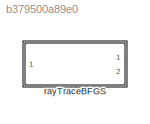
MODEL slx_b379500a89e0
KIND library
CONFIG AbsTol = auto
CONFIG EnableMultiTasking = off
CONFIG FixedStep = auto
CONFIG MaxStep = auto
CONFIG MinStep = auto
CONFIG RelTol = 1e-3
CONFIG SampleTimeConstraint = Unconstrained
CONFIG Solver = VariableStepAuto
CONFIG SolverName = VariableStepAuto
CONFIG StartTime = 0.0
CONFIG StopTime = 10.0
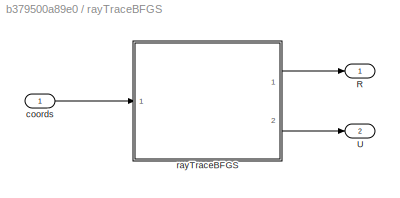
BLOCK [SubSystem] rayTraceBFGS
  Ports = [1, 2]
  RequestExecContextInheritance = off
  TreatAsAtomicUnit = on
BLOCK [Outport] rayTraceBFGS/R
  IconDisplay = Port number
BLOCK [Outport] rayTraceBFGS/U
  IconDisplay = Port number
  Port = 2
BLOCK [Inport] rayTraceBFGS/coords
  IconDisplay = Port number
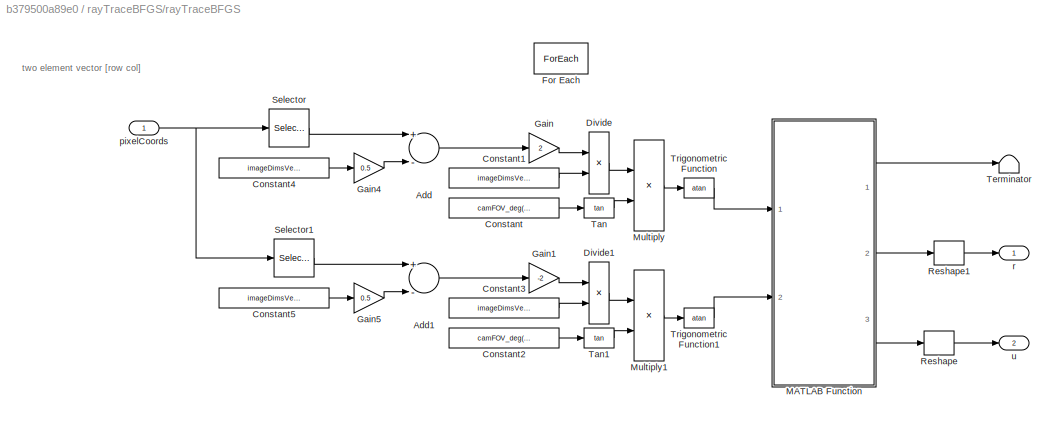
BLOCK [SubSystem] rayTraceBFGS/rayTraceBFGS
  Ports = [1, 2]
  RequestExecContextInheritance = off
BLOCK [Sum] rayTraceBFGS/rayTraceBFGS/Add
  InputSameDT = off
  Inputs = +-
  OutDataTypeStr = Inherit: Inherit via internal rule
  Ports = [2, 1]
  SaturateOnIntegerOverflow = off
BLOCK [Sum] rayTraceBFGS/rayTraceBFGS/Add1
  InputSameDT = off
  Inputs = +-
  OutDataTypeStr = Inherit: Inherit via internal rule
  Ports = [2, 1]
  SaturateOnIntegerOverflow = off
BLOCK [Constant] rayTraceBFGS/rayTraceBFGS/Constant
  Value = camFOV_deg(1)*pi/180
BLOCK [Constant] rayTraceBFGS/rayTraceBFGS/Constant1
  Value = imageDimsVec_px(2)
BLOCK [Constant] rayTraceBFGS/rayTraceBFGS/Constant2
  Value = camFOV_deg(2)*pi/180
BLOCK [Constant] rayTraceBFGS/rayTraceBFGS/Constant3
  Value = imageDimsVec_px(1)
BLOCK [Constant] rayTraceBFGS/rayTraceBFGS/Constant4
  Value = imageDimsVec_px(2)
BLOCK [Constant] rayTraceBFGS/rayTraceBFGS/Constant5
  Value = imageDimsVec_px(1)
BLOCK [Product] rayTraceBFGS/rayTraceBFGS/Divide
  InputSameDT = off
  Inputs = */
  OutDataTypeStr = Inherit: Inherit via internal rule
  Ports = [2, 1]
  RndMeth = Floor
  SaturateOnIntegerOverflow = off
BLOCK [Product] rayTraceBFGS/rayTraceBFGS/Divide1
  InputSameDT = off
  Inputs = */
  OutDataTypeStr = Inherit: Inherit via internal rule
  Ports = [2, 1]
  RndMeth = Floor
  SaturateOnIntegerOverflow = off
BLOCK [ForEach] rayTraceBFGS/rayTraceBFGS/For Each
  DisableCoverage = on
  IndexMode = One-based
  IterateSubsysMaskParameter = on,on,on,on,on,on,on,on
  Ports = []
  SubsysMaskParameterIterationDimension = 2,3,1,2,2,1,2,2
BLOCK [Gain] rayTraceBFGS/rayTraceBFGS/Gain
  Gain = 2
  OutDataTypeStr = Inherit: Inherit via internal rule
  ParamDataTypeStr = Inherit: Inherit via internal rule
  SaturateOnIntegerOverflow = off
BLOCK [Gain] rayTraceBFGS/rayTraceBFGS/Gain1
  Gain = -2
  OutDataTypeStr = Inherit: Inherit via internal rule
  ParamDataTypeStr = Inherit: Inherit via internal rule
  SaturateOnIntegerOverflow = off
BLOCK [Gain] rayTraceBFGS/rayTraceBFGS/Gain4
  Gain = 0.5
  OutDataTypeStr = Inherit: Inherit via internal rule
  ParamDataTypeStr = Inherit: Inherit via internal rule
  SaturateOnIntegerOverflow = off
BLOCK [Gain] rayTraceBFGS/rayTraceBFGS/Gain5
  Gain = 0.5
  OutDataTypeStr = Inherit: Inherit via internal rule
  ParamDataTypeStr = Inherit: Inherit via internal rule
  SaturateOnIntegerOverflow = off
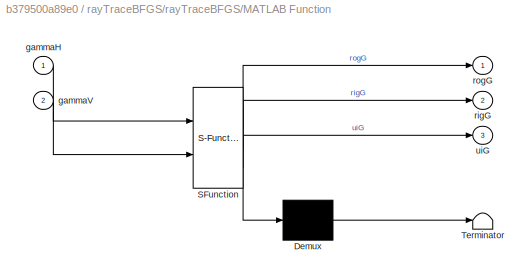
BLOCK [SubSystem] rayTraceBFGS/rayTraceBFGS/MATLAB Function
  ErrorFcn = Stateflow.Translate.translate
  PermitHierarchicalResolution = ExplicitOnly
  Ports = [2, 3]
  RequestExecContextInheritance = off
  SFBlockType = MATLAB Function
  TreatAsAtomicUnit = on
BLOCK [Demux] rayTraceBFGS/rayTraceBFGS/MATLAB Function/ Demux 
  Outputs = 1
  Ports = [1, 1]
BLOCK [S-Function] rayTraceBFGS/rayTraceBFGS/MATLAB Function/ SFunction 
  EnableBusSupport = off
  FunctionName = sf_sfun
  Parameters = camPosVec_cm,dist2Glass_cm,glassOutNormalVec,glassThickness_cm,grnd2CamRotMat,indOfRefVec
  PortCounts = [2 4]
  Ports = [2, 4]
  SFcnIsStateOwnerBlock = off
  SFunctionDeploymentMode = off
  Tag = Stateflow S-Function rayTraceBFGS_ul 2
BLOCK [Terminator] rayTraceBFGS/rayTraceBFGS/MATLAB Function/ Terminator 
BLOCK [Inport] rayTraceBFGS/rayTraceBFGS/MATLAB Function/gammaH
  IconDisplay = Port number
BLOCK [Inport] rayTraceBFGS/rayTraceBFGS/MATLAB Function/gammaV
  IconDisplay = Port number
  Port = 2
BLOCK [Outport] rayTraceBFGS/rayTraceBFGS/MATLAB Function/rigG
  IconDisplay = Port number
  Port = 2
BLOCK [Outport] rayTraceBFGS/rayTraceBFGS/MATLAB Function/rogG
  IconDisplay = Port number
BLOCK [Outport] rayTraceBFGS/rayTraceBFGS/MATLAB Function/uiG
  IconDisplay = Port number
  Port = 3
BLOCK [Product] rayTraceBFGS/rayTraceBFGS/Multiply
  InputSameDT = off
  OutDataTypeStr = Inherit: Inherit via internal rule
  Ports = [2, 1]
  RndMeth = Floor
  SaturateOnIntegerOverflow = off
BLOCK [Product] rayTraceBFGS/rayTraceBFGS/Multiply1
  InputSameDT = off
  OutDataTypeStr = Inherit: Inherit via internal rule
  Ports = [2, 1]
  RndMeth = Floor
  SaturateOnIntegerOverflow = off
BLOCK [Reshape] rayTraceBFGS/rayTraceBFGS/Reshape
  OutputDimensionality = Column vector (2-D)
  Ports = [1, 1]
BLOCK [Reshape] rayTraceBFGS/rayTraceBFGS/Reshape1
  OutputDimensionality = Column vector (2-D)
  Ports = [1, 1]
BLOCK [Selector] rayTraceBFGS/rayTraceBFGS/Selector
  IndexOptions = Index vector (dialog)
  Indices = 2
  InputPortWidth = 2
  OutputSizes = 1
  Ports = [1, 1]
BLOCK [Selector] rayTraceBFGS/rayTraceBFGS/Selector1
  IndexOptions = Index vector (dialog)
  Indices = 1
  InputPortWidth = 2
  OutputSizes = 1
  Ports = [1, 1]
BLOCK [Trigonometry] rayTraceBFGS/rayTraceBFGS/Tan
  Operator = tan
  Ports = [1, 1]
BLOCK [Trigonometry] rayTraceBFGS/rayTraceBFGS/Tan1
  Operator = tan
  Ports = [1, 1]
BLOCK [Terminator] rayTraceBFGS/rayTraceBFGS/Terminator
BLOCK [Trigonometry] rayTraceBFGS/rayTraceBFGS/Trigonometric Function
  Operator = atan
  Ports = [1, 1]
BLOCK [Trigonometry] rayTraceBFGS/rayTraceBFGS/Trigonometric Function1
  Operator = atan
  Ports = [1, 1]
BLOCK [Inport] rayTraceBFGS/rayTraceBFGS/pixelCoords
  IconDisplay = Port number
  Partition = on
  PartitionDimension = 2
  PartitionOffset = 0
  PartitionWidth = 1
BLOCK [Outport] rayTraceBFGS/rayTraceBFGS/r
  ConcatenationDimension = 2
  IconDisplay = Port number
BLOCK [Outport] rayTraceBFGS/rayTraceBFGS/u
  ConcatenationDimension = 2
  IconDisplay = Port number
  Port = 2
ANNOTATION rayTraceBFGS/rayTraceBFGS: two element vector [row col]
CHART rayTraceBFGS/rayTraceBFGS/MATLAB Function states=1 transitions=1
  STATE_LABEL 'eML_blk_kernel()'
  STATE_LABEL 'SCRIPT:\nfunction [rogG,rigG,uiG] = ...\n    rayTrace(gammaH,gammaV,camPosVec_cm,grnd2CamRotMat,dist2Glass_cm,...\n    indOfRefVec,glassOutNormalVec,glassThickness_cm)\n\n[rogG,rigG,uiG] = ...\n    rayTraceBFGS(camPosVec_cm,grnd2CamRotMat,dist2Glass_cm,gammaH,gammaV,...\n    indOfRefVec,glassOutNormalVec,glassThickness_cm);'
